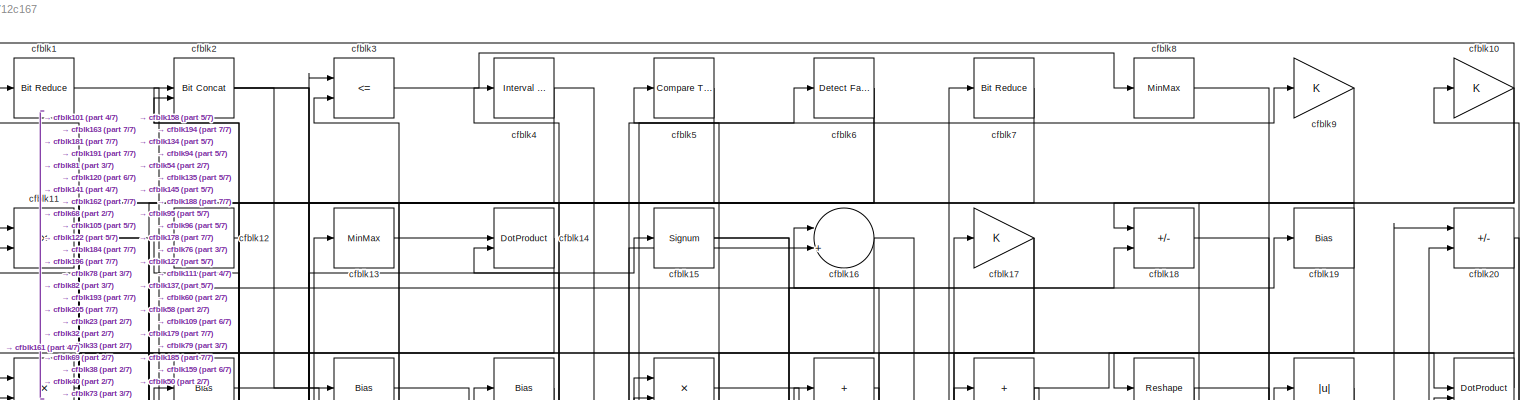
[diagram: root canvas - part 1/7, full width, top band]
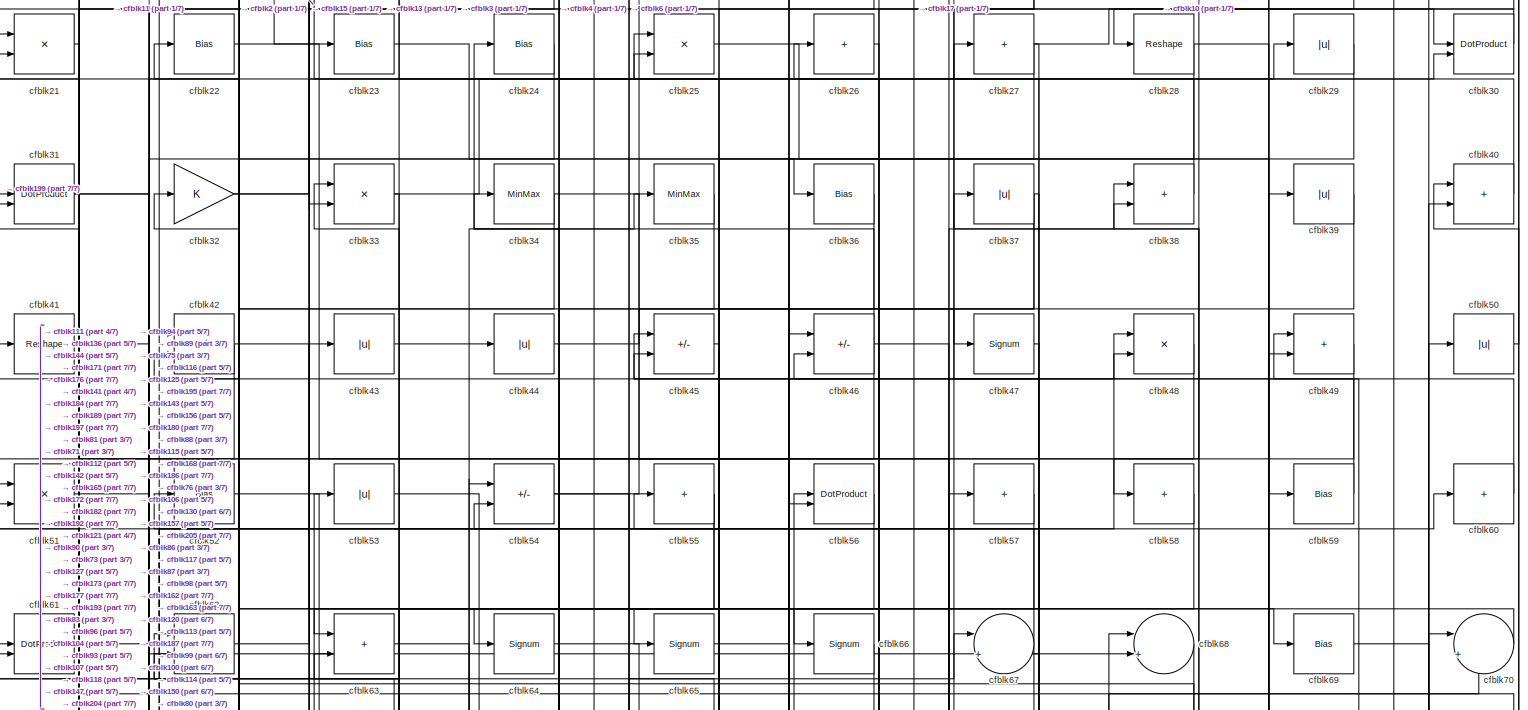
[diagram: root canvas - part 2/7, full width, top band]
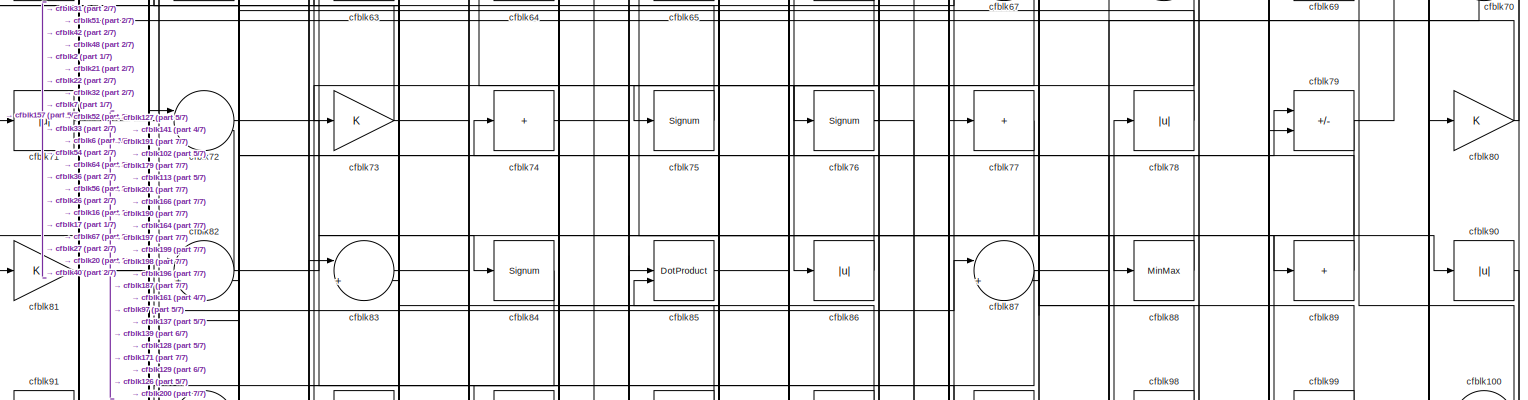
[diagram: root canvas - part 3/7, full width, middle band]
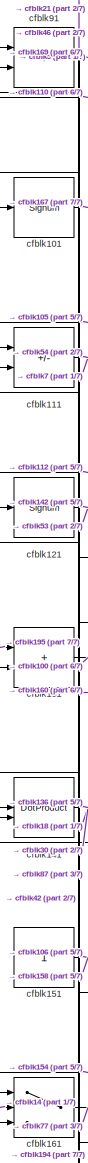
[diagram: root canvas - part 4/7, middle left region]
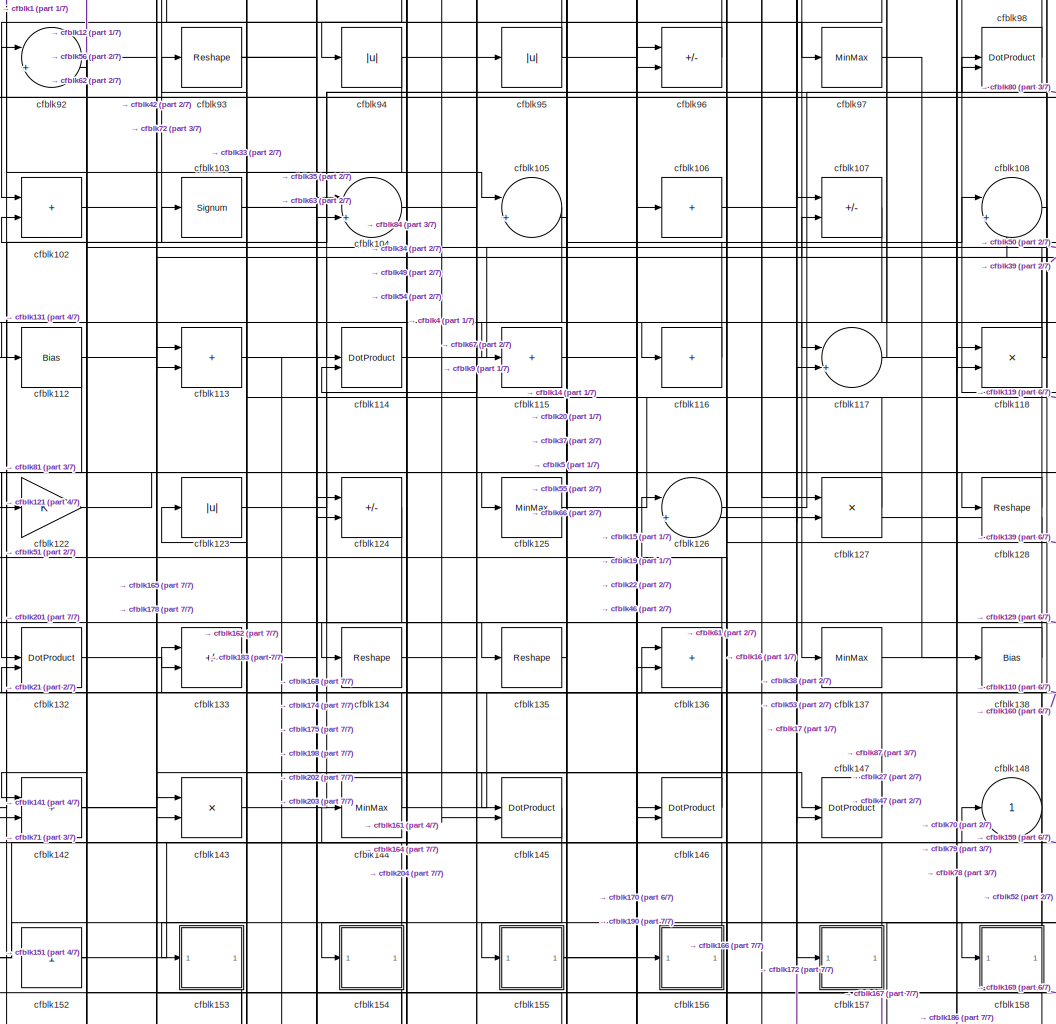
[diagram: root canvas - part 5/7, central region]
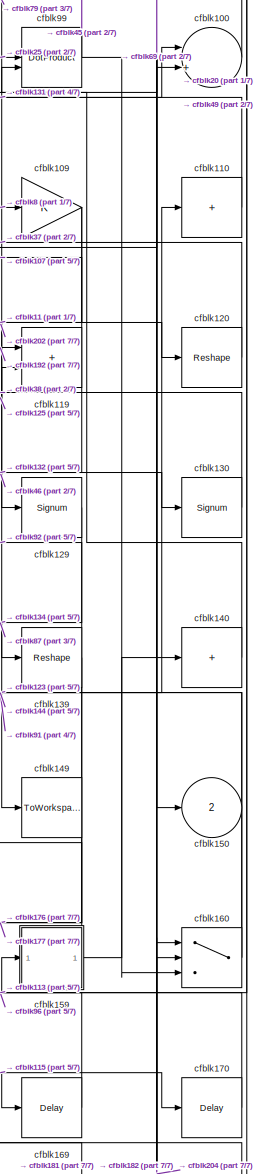
[diagram: root canvas - part 6/7, middle right region]
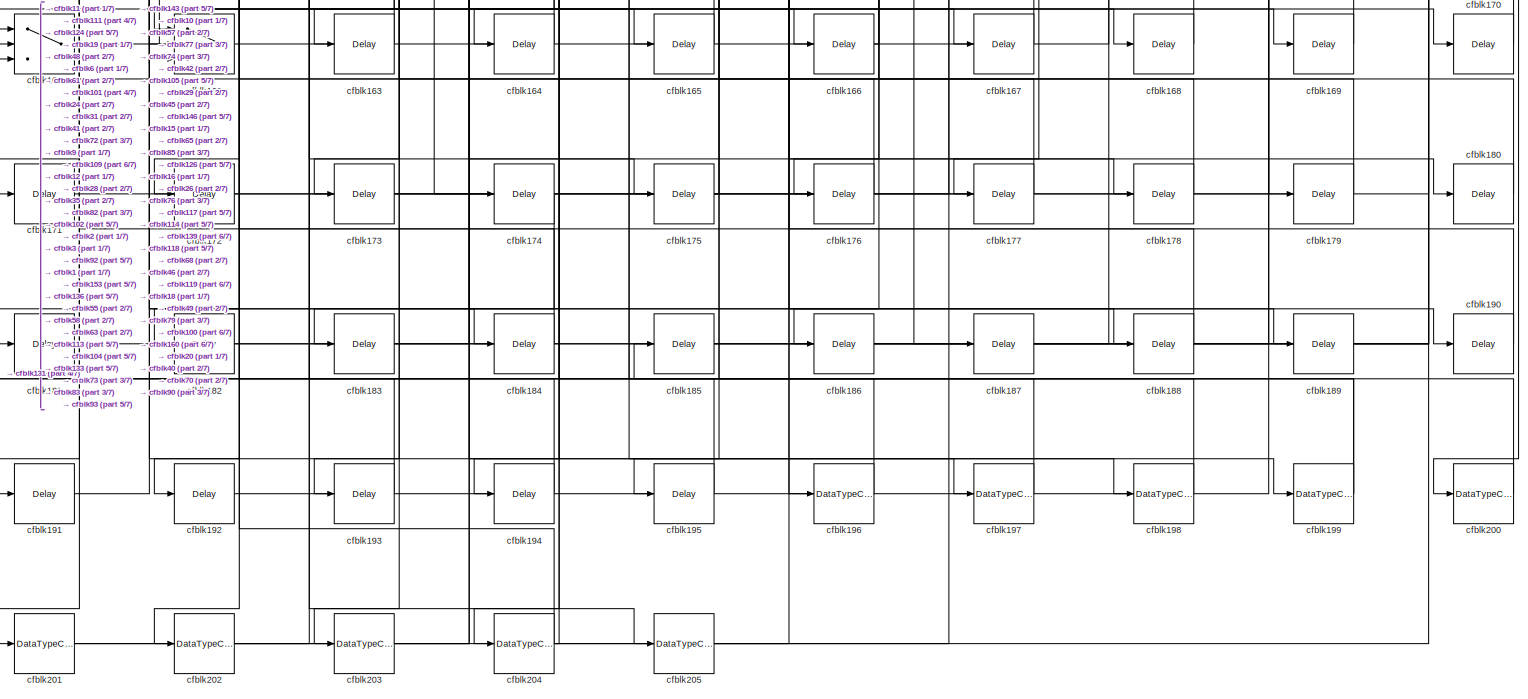
[diagram: root canvas - part 7/7, full width, bottom band]
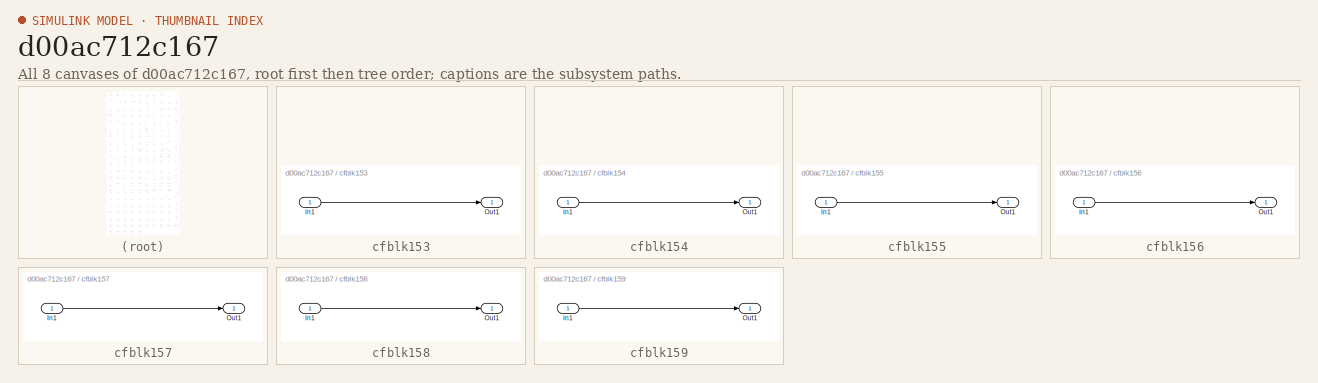
[diagram: thumbnail index - all 8 canvases of the model, root first then tree order]
MODEL slx_d00ac712c167
KIND model
CONFIG AbsTol = auto
CONFIG EnableMultiTasking = off
CONFIG FixedStep = auto
CONFIG MaxStep = auto
CONFIG MinStep = auto
CONFIG RelTol = 1e-3
CONFIG SampleTimeConstraint = Unconstrained
CONFIG SolverName = VariableStepAuto
CONFIG StartTime = 0.0
CONFIG StopTime = 10.0
BLOCK [Reference] cfblk1  REF=hdlsllib/Logic and Bit
Operations/Bit Reduce
  SourceBlock = hdlsllib/Logic and Bit\nOperations/Bit Reduce
  SourceType = Bit Reduce
BLOCK [Gain] cfblk10
BLOCK [Sum] cfblk100
  Inputs = |++
BLOCK [Signum] cfblk101
BLOCK [Sum] cfblk102
  IconShape = rectangular
BLOCK [Signum] cfblk103
BLOCK [Sum] cfblk104
  Inputs = |++
BLOCK [Sum] cfblk105
  Inputs = |++
BLOCK [Sum] cfblk106
  IconShape = rectangular
  Inputs = +
BLOCK [Sum] cfblk107
  IconShape = rectangular
  Inputs = +-
BLOCK [Sum] cfblk108
  Inputs = |++
BLOCK [Gain] cfblk109
BLOCK [Product] cfblk11
  Inputs = */
  RndMeth = Zero
  SaturateOnIntegerOverflow = on
BLOCK [Sum] cfblk110
  IconShape = rectangular
  Inputs = +
BLOCK [Sum] cfblk111
  IconShape = rectangular
  Inputs = +-
BLOCK [Bias] cfblk112
  Bias = 0.0
  SaturateOnIntegerOverflow = off
BLOCK [Sum] cfblk113
  IconShape = rectangular
BLOCK [DotProduct] cfblk114
  OutDataTypeStr = Inherit: Inherit via internal rule
BLOCK [Sum] cfblk115
  IconShape = rectangular
  Inputs = +
BLOCK [Sum] cfblk116
  IconShape = rectangular
  Inputs = +
BLOCK [Sum] cfblk117
  Inputs = |++
BLOCK [Product] cfblk118
  Inputs = */
  RndMeth = Zero
  SaturateOnIntegerOverflow = on
BLOCK [Sum] cfblk119
  IconShape = rectangular
BLOCK [Sum] cfblk12
  IconShape = rectangular
  Inputs = +
BLOCK [Reshape] cfblk120
BLOCK [Signum] cfblk121
BLOCK [Gain] cfblk122
BLOCK [Abs] cfblk123
  SaturateOnIntegerOverflow = off
BLOCK [Sum] cfblk124
  IconShape = rectangular
  Inputs = +-
BLOCK [MinMax] cfblk125
BLOCK [Sum] cfblk126
  Inputs = |++
BLOCK [Product] cfblk127
  Inputs = */
  RndMeth = Zero
  SaturateOnIntegerOverflow = on
BLOCK [Reshape] cfblk128
BLOCK [Signum] cfblk129
BLOCK [MinMax] cfblk13
BLOCK [Signum] cfblk130
BLOCK [Sum] cfblk131
  IconShape = rectangular
BLOCK [DotProduct] cfblk132
  OutDataTypeStr = Inherit: Inherit via internal rule
BLOCK [Sum] cfblk133
  IconShape = rectangular
  Inputs = +-
BLOCK [Reshape] cfblk134
BLOCK [Reshape] cfblk135
BLOCK [Sum] cfblk136
  IconShape = rectangular
BLOCK [MinMax] cfblk137
BLOCK [Bias] cfblk138
  Bias = 0.0
  SaturateOnIntegerOverflow = off
BLOCK [Reshape] cfblk139
BLOCK [DotProduct] cfblk14
  OutDataTypeStr = Inherit: Inherit via internal rule
BLOCK [Sum] cfblk140
  IconShape = rectangular
  Inputs = +
BLOCK [DotProduct] cfblk141
  OutDataTypeStr = Inherit: Inherit via internal rule
BLOCK [Sum] cfblk142
  IconShape = rectangular
BLOCK [Product] cfblk143
  Inputs = */
  RndMeth = Zero
  SaturateOnIntegerOverflow = on
BLOCK [MinMax] cfblk144
BLOCK [DotProduct] cfblk145
  OutDataTypeStr = Inherit: Inherit via internal rule
BLOCK [DotProduct] cfblk146
  OutDataTypeStr = Inherit: Inherit via internal rule
BLOCK [DotProduct] cfblk147
  OutDataTypeStr = Inherit: Inherit via internal rule
BLOCK [Outport] cfblk148
  VectorParamsAs1DForOutWhenUnconnected = off
BLOCK [ToWorkspace] cfblk149
  MaxDataPoints = inf
  SampleTime = -1
  SaveFormat = Timeseries
  VariableName = simout
BLOCK [Signum] cfblk15
BLOCK [Outport] cfblk150
  Port = 2
  VectorParamsAs1DForOutWhenUnconnected = off
BLOCK [Constant] cfblk151
  SampleTime = -1
BLOCK [Constant] cfblk152
  SampleTime = -1
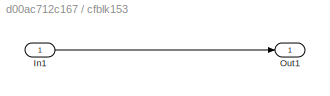
BLOCK [SubSystem] cfblk153
  LibrarySourceBlock = hdlsllib/Ports &\nSubsystems/Subsystem
BLOCK [Inport] cfblk153/In1
BLOCK [Outport] cfblk153/Out1
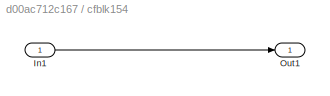
BLOCK [SubSystem] cfblk154
  LibrarySourceBlock = hdlsllib/Ports &\nSubsystems/Subsystem
BLOCK [Inport] cfblk154/In1
BLOCK [Outport] cfblk154/Out1
BLOCK [SubSystem] cfblk155
  LibrarySourceBlock = hdlsllib/Ports &\nSubsystems/Subsystem
BLOCK [Inport] cfblk155/In1
BLOCK [Outport] cfblk155/Out1
BLOCK [SubSystem] cfblk156
  LibrarySourceBlock = hdlsllib/Ports &\nSubsystems/Subsystem
BLOCK [Inport] cfblk156/In1
BLOCK [Outport] cfblk156/Out1
BLOCK [SubSystem] cfblk157
  LibrarySourceBlock = hdlsllib/Ports &\nSubsystems/Subsystem
BLOCK [Inport] cfblk157/In1
BLOCK [Outport] cfblk157/Out1
BLOCK [SubSystem] cfblk158
  LibrarySourceBlock = hdlsllib/Ports &\nSubsystems/Subsystem
BLOCK [Inport] cfblk158/In1
BLOCK [Outport] cfblk158/Out1
BLOCK [SubSystem] cfblk159
  LibrarySourceBlock = hdlsllib/Ports &\nSubsystems/Subsystem
BLOCK [Inport] cfblk159/In1
BLOCK [Outport] cfblk159/Out1
BLOCK [Sum] cfblk16
  Inputs = |++
BLOCK [Switch] cfblk160
  InputSameDT = off
  SaturateOnIntegerOverflow = off
BLOCK [Switch] cfblk161
  InputSameDT = off
  SaturateOnIntegerOverflow = off
BLOCK [Switch] cfblk162
  InputSameDT = off
  SaturateOnIntegerOverflow = off
BLOCK [Delay] cfblk163
  InputPortMap = u0
  SampleTime = 1
BLOCK [Delay] cfblk164
  InputPortMap = u0
  SampleTime = 1
BLOCK [Delay] cfblk165
  InputPortMap = u0
  SampleTime = 1
BLOCK [Delay] cfblk166
  InputPortMap = u0
  SampleTime = 1
BLOCK [Delay] cfblk167
  InputPortMap = u0
  SampleTime = 1
BLOCK [Delay] cfblk168
  InputPortMap = u0
  SampleTime = 1
BLOCK [Delay] cfblk169
  InputPortMap = u0
  SampleTime = 1
BLOCK [Gain] cfblk17
BLOCK [Delay] cfblk170
  InputPortMap = u0
  SampleTime = 1
BLOCK [Delay] cfblk171
  InputPortMap = u0
  SampleTime = 1
BLOCK [Delay] cfblk172
  InputPortMap = u0
  SampleTime = 1
BLOCK [Delay] cfblk173
  InputPortMap = u0
  SampleTime = 1
BLOCK [Delay] cfblk174
  InputPortMap = u0
  SampleTime = 1
BLOCK [Delay] cfblk175
  InputPortMap = u0
  SampleTime = 1
BLOCK [Delay] cfblk176
  InputPortMap = u0
  SampleTime = 1
BLOCK [Delay] cfblk177
  InputPortMap = u0
  SampleTime = 1
BLOCK [Delay] cfblk178
  InputPortMap = u0
  SampleTime = 1
BLOCK [Delay] cfblk179
  InputPortMap = u0
  SampleTime = 1
BLOCK [Sum] cfblk18
  IconShape = rectangular
  Inputs = +-
BLOCK [Delay] cfblk180
  InputPortMap = u0
  SampleTime = 1
BLOCK [Delay] cfblk181
  InputPortMap = u0
  SampleTime = 1
BLOCK [Delay] cfblk182
  InputPortMap = u0
  SampleTime = 1
BLOCK [Delay] cfblk183
  InputPortMap = u0
  SampleTime = 1
BLOCK [Delay] cfblk184
  InputPortMap = u0
  SampleTime = 1
BLOCK [Delay] cfblk185
  InputPortMap = u0
  SampleTime = 1
BLOCK [Delay] cfblk186
  InputPortMap = u0
  SampleTime = 1
BLOCK [Delay] cfblk187
  InputPortMap = u0
  SampleTime = 1
BLOCK [Delay] cfblk188
  InputPortMap = u0
  SampleTime = 1
BLOCK [Delay] cfblk189
  InputPortMap = u0
  SampleTime = 1
BLOCK [Bias] cfblk19
  Bias = 0.0
  SaturateOnIntegerOverflow = off
BLOCK [Delay] cfblk190
  InputPortMap = u0
  SampleTime = 1
BLOCK [Delay] cfblk191
  InputPortMap = u0
  SampleTime = 1
BLOCK [Delay] cfblk192
  InputPortMap = u0
  SampleTime = 1
BLOCK [Delay] cfblk193
  InputPortMap = u0
  SampleTime = 1
BLOCK [Delay] cfblk194
  InputPortMap = u0
  SampleTime = 1
BLOCK [Delay] cfblk195
  InputPortMap = u0
  SampleTime = 1
BLOCK [DataTypeConversion] cfblk196
  OutDataTypeStr = uint8
  RndMeth = Floor
  SaturateOnIntegerOverflow = off
BLOCK [DataTypeConversion] cfblk197
  OutDataTypeStr = uint8
  RndMeth = Floor
  SaturateOnIntegerOverflow = off
BLOCK [DataTypeConversion] cfblk198
  OutDataTypeStr = uint8
  RndMeth = Floor
  SaturateOnIntegerOverflow = off
BLOCK [DataTypeConversion] cfblk199
  RndMeth = Floor
  SaturateOnIntegerOverflow = off
BLOCK [Reference] cfblk2  REF=hdlsllib/Logic and Bit
Operations/Bit Concat
  SourceBlock = hdlsllib/Logic and Bit\nOperations/Bit Concat
  SourceType = Bit Concat
BLOCK [Sum] cfblk20
  IconShape = rectangular
  Inputs = +-
BLOCK [DataTypeConversion] cfblk200
  OutDataTypeStr = uint8
  RndMeth = Floor
  SaturateOnIntegerOverflow = off
BLOCK [DataTypeConversion] cfblk201
  RndMeth = Floor
  SaturateOnIntegerOverflow = off
BLOCK [DataTypeConversion] cfblk202
  OutDataTypeStr = uint8
  RndMeth = Floor
  SaturateOnIntegerOverflow = off
BLOCK [DataTypeConversion] cfblk203
  OutDataTypeStr = uint8
  RndMeth = Floor
  SaturateOnIntegerOverflow = off
BLOCK [DataTypeConversion] cfblk204
  RndMeth = Floor
  SaturateOnIntegerOverflow = off
BLOCK [DataTypeConversion] cfblk205
  OutDataTypeStr = uint8
  RndMeth = Floor
  SaturateOnIntegerOverflow = off
BLOCK [Product] cfblk21
  Inputs = */
  RndMeth = Zero
  SaturateOnIntegerOverflow = on
BLOCK [Bias] cfblk22
  Bias = 0.0
  SaturateOnIntegerOverflow = off
BLOCK [Bias] cfblk23
  Bias = 0.0
  SaturateOnIntegerOverflow = off
BLOCK [Bias] cfblk24
  Bias = 0.0
  SaturateOnIntegerOverflow = off
BLOCK [Product] cfblk25
  Inputs = */
  RndMeth = Zero
  SaturateOnIntegerOverflow = on
BLOCK [Sum] cfblk26
  IconShape = rectangular
  Inputs = +
BLOCK [Sum] cfblk27
  IconShape = rectangular
  Inputs = +
BLOCK [Reshape] cfblk28
BLOCK [Abs] cfblk29
  SaturateOnIntegerOverflow = off
BLOCK [RelationalOperator] cfblk3
  InputSameDT = off
  Operator = <=
  OutDataTypeStr = boolean
BLOCK [DotProduct] cfblk30
  OutDataTypeStr = Inherit: Inherit via internal rule
BLOCK [DotProduct] cfblk31
  OutDataTypeStr = Inherit: Inherit via internal rule
BLOCK [Gain] cfblk32
BLOCK [Product] cfblk33
  Inputs = */
  RndMeth = Zero
  SaturateOnIntegerOverflow = on
BLOCK [MinMax] cfblk34
BLOCK [MinMax] cfblk35
BLOCK [Bias] cfblk36
  Bias = 0.0
  SaturateOnIntegerOverflow = off
BLOCK [Abs] cfblk37
  SaturateOnIntegerOverflow = off
BLOCK [Sum] cfblk38
  IconShape = rectangular
BLOCK [Abs] cfblk39
  SaturateOnIntegerOverflow = off
BLOCK [Reference] cfblk4  REF=hdlsllib/Logic and Bit
Operations/Interval Test
  SourceBlock = hdlsllib/Logic and Bit\nOperations/Interval Test
  SourceType = Interval Test
BLOCK [Sum] cfblk40
  IconShape = rectangular
BLOCK [Reshape] cfblk41
BLOCK [Sum] cfblk42
  IconShape = rectangular
  Inputs = +-
BLOCK [Abs] cfblk43
  SaturateOnIntegerOverflow = off
BLOCK [Abs] cfblk44
  SaturateOnIntegerOverflow = off
BLOCK [Sum] cfblk45
  IconShape = rectangular
  Inputs = +-
BLOCK [Sum] cfblk46
  IconShape = rectangular
  Inputs = +-
BLOCK [Signum] cfblk47
BLOCK [Product] cfblk48
  Inputs = */
  RndMeth = Zero
  SaturateOnIntegerOverflow = on
BLOCK [Sum] cfblk49
  IconShape = rectangular
BLOCK [Reference] cfblk5  REF=hdlsllib/Logic and Bit
Operations/Compare
To Constant
  SourceBlock = hdlsllib/Logic and Bit\nOperations/Compare\nTo Constant
  SourceType = Compare To Constant
BLOCK [Abs] cfblk50
  SaturateOnIntegerOverflow = off
BLOCK [Product] cfblk51
  Inputs = */
  RndMeth = Zero
  SaturateOnIntegerOverflow = on
BLOCK [Bias] cfblk52
  Bias = 0.0
  SaturateOnIntegerOverflow = off
BLOCK [Abs] cfblk53
  SaturateOnIntegerOverflow = off
BLOCK [Sum] cfblk54
  IconShape = rectangular
  Inputs = +-
BLOCK [Sum] cfblk55
  IconShape = rectangular
  Inputs = +
BLOCK [DotProduct] cfblk56
  OutDataTypeStr = Inherit: Inherit via internal rule
BLOCK [Sum] cfblk57
  IconShape = rectangular
  Inputs = +
BLOCK [Sum] cfblk58
  IconShape = rectangular
  Inputs = +
BLOCK [Bias] cfblk59
  Bias = 0.0
  SaturateOnIntegerOverflow = off
BLOCK [Reference] cfblk6  REF=hdlsllib/Logic and Bit
Operations/Detect Fall
Nonpositive
  SourceBlock = hdlsllib/Logic and Bit\nOperations/Detect Fall\nNonpositive
  SourceType = Detect Fall Nonpositive
BLOCK [Sum] cfblk60
  IconShape = rectangular
  Inputs = +
BLOCK [DotProduct] cfblk61
  OutDataTypeStr = Inherit: Inherit via internal rule
BLOCK [Sum] cfblk62
  IconShape = rectangular
BLOCK [Sum] cfblk63
  IconShape = rectangular
BLOCK [Signum] cfblk64
BLOCK [Signum] cfblk65
BLOCK [Signum] cfblk66
BLOCK [Sum] cfblk67
  Inputs = |++
BLOCK [Sum] cfblk68
  Inputs = |++
BLOCK [Bias] cfblk69
  Bias = 0.0
  SaturateOnIntegerOverflow = off
BLOCK [Reference] cfblk7  REF=hdlsllib/Logic and Bit
Operations/Bit Reduce
  SourceBlock = hdlsllib/Logic and Bit\nOperations/Bit Reduce
  SourceType = Bit Reduce
BLOCK [Sum] cfblk70
  Inputs = |++
BLOCK [Abs] cfblk71
  SaturateOnIntegerOverflow = off
BLOCK [Sum] cfblk72
  Inputs = |++
BLOCK [Gain] cfblk73
BLOCK [Sum] cfblk74
  IconShape = rectangular
  Inputs = +
BLOCK [Signum] cfblk75
BLOCK [Signum] cfblk76
BLOCK [Sum] cfblk77
  IconShape = rectangular
  Inputs = +
BLOCK [Abs] cfblk78
  SaturateOnIntegerOverflow = off
BLOCK [Sum] cfblk79
  IconShape = rectangular
  Inputs = +-
BLOCK [MinMax] cfblk8
BLOCK [Gain] cfblk80
BLOCK [Gain] cfblk81
BLOCK [Sum] cfblk82
  Inputs = |++
BLOCK [Sum] cfblk83
  Inputs = |++
BLOCK [Signum] cfblk84
BLOCK [DotProduct] cfblk85
  OutDataTypeStr = Inherit: Inherit via internal rule
BLOCK [Abs] cfblk86
  SaturateOnIntegerOverflow = off
BLOCK [Sum] cfblk87
  Inputs = |++
BLOCK [MinMax] cfblk88
BLOCK [Sum] cfblk89
  IconShape = rectangular
  Inputs = +
BLOCK [Gain] cfblk9
BLOCK [Abs] cfblk90
  SaturateOnIntegerOverflow = off
BLOCK [Sum] cfblk91
  IconShape = rectangular
  Inputs = +-
BLOCK [Sum] cfblk92
  Inputs = |++
BLOCK [Reshape] cfblk93
BLOCK [Abs] cfblk94
  SaturateOnIntegerOverflow = off
BLOCK [Abs] cfblk95
  SaturateOnIntegerOverflow = off
BLOCK [Sum] cfblk96
  IconShape = rectangular
  Inputs = +-
BLOCK [MinMax] cfblk97
BLOCK [DotProduct] cfblk98
  OutDataTypeStr = Inherit: Inherit via internal rule
BLOCK [DotProduct] cfblk99
  OutDataTypeStr = Inherit: Inherit via internal rule
LINE cfblk100:1 -> cfblk49:1
LINE cfblk101:1 -> cfblk167:1
LINE cfblk102:1 -> cfblk165:1
NET cfblk103:1 -> cfblk128:1, cfblk136:2
LINE cfblk104:1 -> cfblk67:1
LINE cfblk105:1 -> cfblk131:2
LINE cfblk106:1 -> cfblk38:1
LINE cfblk107:1 -> cfblk154:1
LINE cfblk108:1 -> cfblk133:1
NET cfblk109:1 -> cfblk149:1, cfblk202:1
NET cfblk10:1 -> cfblk11:1, cfblk194:1, cfblk58:1
LINE cfblk110:1 -> cfblk91:1
NET cfblk111:1 -> cfblk54:1, cfblk7:1
NET cfblk112:1 -> cfblk116:1, cfblk161:3
NET cfblk113:1 -> cfblk147:2, cfblk174:1, cfblk175:1, cfblk39:1
LINE cfblk114:1 -> cfblk50:1
LINE cfblk115:1 -> cfblk170:1
LINE cfblk116:1 -> cfblk55:1
NET cfblk117:1 -> cfblk27:1, cfblk70:2
NET cfblk118:1 -> cfblk54:2, cfblk62:2, cfblk98:2
NET cfblk119:1 -> cfblk107:2, cfblk132:1
NET cfblk11:1 -> cfblk120:1, cfblk68:2
LINE cfblk120:1 -> cfblk37:1
NET cfblk121:1 -> cfblk142:2, cfblk53:1
LINE cfblk122:1 -> cfblk135:1
LINE cfblk123:1 -> cfblk95:1
LINE cfblk124:1 -> cfblk201:1
LINE cfblk125:1 -> cfblk119:2
LINE cfblk126:1 -> cfblk80:1
LINE cfblk127:1 -> cfblk33:1
LINE cfblk128:1 -> cfblk78:1
LINE cfblk129:1 -> cfblk134:1
LINE cfblk12:1 -> cfblk122:1
LINE cfblk130:1 -> cfblk38:2
LINE cfblk131:1 -> cfblk100:1
LINE cfblk132:1 -> cfblk133:2
LINE cfblk133:1 -> cfblk198:1
LINE cfblk134:1 -> cfblk9:1
LINE cfblk135:1 -> cfblk5:1
NET cfblk136:1 -> cfblk183:1, cfblk51:2
LINE cfblk137:1 -> cfblk79:1
LINE cfblk138:1 -> cfblk126:2
NET cfblk139:1 -> cfblk176:1, cfblk177:1, cfblk92:1
LINE cfblk13:1 -> cfblk14:1
LINE cfblk140:1 -> cfblk99:2
NET cfblk141:1 -> cfblk136:1, cfblk18:2, cfblk30:2, cfblk87:1
NET cfblk142:1 -> cfblk108:2, cfblk147:1
LINE cfblk143:1 -> cfblk46:1
NET cfblk144:1 -> cfblk110:1, cfblk21:2
LINE cfblk145:1 -> cfblk155:1
NET cfblk146:1 -> cfblk103:1, cfblk92:2
LINE cfblk147:1 -> cfblk34:1
LINE cfblk14:1 -> cfblk161:2
NET cfblk151:1 -> cfblk106:1, cfblk158:1
NET cfblk152:1 -> cfblk132:2, cfblk148:1
LINE cfblk153/In1:1 -> cfblk153/Out1:1
LINE cfblk153:1 -> cfblk162:1
LINE cfblk154/In1:1 -> cfblk154/Out1:1
NET cfblk154:1 -> cfblk161:1, cfblk93:1
LINE cfblk155/In1:1 -> cfblk155/Out1:1
NET cfblk155:1 -> cfblk108:1, cfblk98:1
LINE cfblk156/In1:1 -> cfblk156/Out1:1
LINE cfblk156:1 -> cfblk62:1
LINE cfblk157/In1:1 -> cfblk157/Out1:1
LINE cfblk157:1 -> cfblk71:1
LINE cfblk158/In1:1 -> cfblk158/Out1:1
NET cfblk158:1 -> cfblk121:1, cfblk4:1
LINE cfblk159/In1:1 -> cfblk159/Out1:1
NET cfblk159:1 -> cfblk140:1, cfblk144:1
NET cfblk15:1 -> cfblk188:1, cfblk96:2
NET cfblk160:1 -> cfblk123:1, cfblk91:2
LINE cfblk161:1 -> cfblk77:1
LINE cfblk162:1 -> cfblk68:1
LINE cfblk163:1 -> cfblk1:1
LINE cfblk164:1 -> cfblk143:1
LINE cfblk165:1 -> cfblk42:2
LINE cfblk166:1 -> cfblk126:1
LINE cfblk167:1 -> cfblk114:1
LINE cfblk168:1 -> cfblk46:2
LINE cfblk169:1 -> cfblk96:1
NET cfblk16:1 -> cfblk127:1, cfblk81:1
LINE cfblk170:1 -> cfblk113:1
LINE cfblk171:1 -> cfblk79:2
LINE cfblk172:1 -> cfblk117:2
LINE cfblk173:1 -> cfblk40:2
LINE cfblk174:1 -> cfblk203:1
LINE cfblk175:1 -> cfblk105:2
LINE cfblk176:1 -> cfblk61:2
LINE cfblk177:1 -> cfblk63:2
LINE cfblk178:1 -> cfblk16:1
LINE cfblk179:1 -> cfblk82:1
NET cfblk17:1 -> cfblk137:1, cfblk76:1
LINE cfblk180:1 -> cfblk45:2
LINE cfblk181:1 -> cfblk160:2
LINE cfblk182:1 -> cfblk100:2
LINE cfblk183:1 -> cfblk104:2
LINE cfblk184:1 -> cfblk2:2
LINE cfblk185:1 -> cfblk20:2
LINE cfblk186:1 -> cfblk118:1
LINE cfblk187:1 -> cfblk49:2
LINE cfblk188:1 -> cfblk11:2
LINE cfblk189:1 -> cfblk70:1
LINE cfblk18:1 -> cfblk179:1
LINE cfblk190:1 -> cfblk146:1
LINE cfblk191:1 -> cfblk72:1
LINE cfblk192:1 -> cfblk119:1
LINE cfblk193:1 -> cfblk3:1
LINE cfblk194:1 -> cfblk111:2
LINE cfblk195:1 -> cfblk131:1
LINE cfblk196:1 -> cfblk12:1
LINE cfblk197:1 -> cfblk85:1
LINE cfblk198:1 -> cfblk85:2
NET cfblk199:1 -> cfblk185:1, cfblk31:1
NET cfblk19:1 -> cfblk181:1, cfblk18:1
LINE cfblk1:1 -> cfblk105:1
LINE cfblk200:1 -> cfblk74:1
NET cfblk201:1 -> cfblk146:2, cfblk83:1
LINE cfblk202:1 -> cfblk124:1
LINE cfblk203:1 -> cfblk124:2
NET cfblk204:1 -> cfblk102:2, cfblk114:2, cfblk160:1
LINE cfblk205:1 -> cfblk57:1
NET cfblk20:1 -> cfblk145:1, cfblk159:1
LINE cfblk21:1 -> cfblk141:1
LINE cfblk22:1 -> cfblk156:1
LINE cfblk23:1 -> cfblk36:1
LINE cfblk24:1 -> cfblk162:2
LINE cfblk25:1 -> cfblk99:1
LINE cfblk26:1 -> cfblk186:1
NET cfblk27:1 -> cfblk30:1, cfblk56:2, cfblk87:2
NET cfblk28:1 -> cfblk182:1, cfblk59:1
LINE cfblk29:1 -> cfblk195:1
NET cfblk2:1 -> cfblk205:1, cfblk23:1, cfblk69:1
LINE cfblk30:1 -> cfblk28:1
NET cfblk31:1 -> cfblk184:1, cfblk197:1
NET cfblk32:1 -> cfblk15:1, cfblk25:2
NET cfblk33:1 -> cfblk29:1, cfblk83:2
NET cfblk34:1 -> cfblk112:1, cfblk157:1
LINE cfblk35:1 -> cfblk192:1
LINE cfblk36:1 -> cfblk75:1
NET cfblk37:1 -> cfblk125:1, cfblk64:1, cfblk67:2
LINE cfblk38:1 -> cfblk13:1
LINE cfblk39:1 -> cfblk66:1
LINE cfblk3:1 -> cfblk8:1
LINE cfblk40:1 -> cfblk3:2
LINE cfblk41:1 -> cfblk189:1
NET cfblk42:1 -> cfblk141:2, cfblk143:2
LINE cfblk43:1 -> cfblk44:1
LINE cfblk44:1 -> cfblk47:1
LINE cfblk45:1 -> cfblk65:1
NET cfblk46:1 -> cfblk111:1, cfblk130:1, cfblk24:1
LINE cfblk47:1 -> cfblk117:1
LINE cfblk48:1 -> cfblk171:1
LINE cfblk49:1 -> cfblk94:1
NET cfblk4:1 -> cfblk145:2, cfblk33:2
LINE cfblk50:1 -> cfblk10:1
LINE cfblk51:1 -> cfblk48:1
LINE cfblk52:1 -> cfblk90:1
LINE cfblk53:1 -> cfblk107:1
NET cfblk54:1 -> cfblk6:1, cfblk89:1
NET cfblk55:1 -> cfblk172:1, cfblk173:1
LINE cfblk56:1 -> cfblk142:1
LINE cfblk57:1 -> cfblk204:1
LINE cfblk58:1 -> cfblk193:1
LINE cfblk59:1 -> cfblk25:1
LINE cfblk5:1 -> cfblk101:1
LINE cfblk60:1 -> cfblk17:1
LINE cfblk61:1 -> cfblk60:1
LINE cfblk62:1 -> cfblk43:1
LINE cfblk63:1 -> cfblk104:1
LINE cfblk64:1 -> cfblk88:1
LINE cfblk65:1 -> cfblk180:1
LINE cfblk66:1 -> cfblk115:1
NET cfblk67:1 -> cfblk41:1, cfblk86:1
LINE cfblk68:1 -> cfblk163:1
LINE cfblk69:1 -> cfblk150:1
NET cfblk6:1 -> cfblk191:1, cfblk73:1
LINE cfblk70:1 -> cfblk63:1
LINE cfblk71:1 -> cfblk48:2
LINE cfblk72:1 -> cfblk97:1
NET cfblk73:1 -> cfblk190:1, cfblk31:2
LINE cfblk74:1 -> cfblk199:1
LINE cfblk75:1 -> cfblk22:1
NET cfblk76:1 -> cfblk187:1, cfblk26:1
LINE cfblk77:1 -> cfblk164:1
LINE cfblk78:1 -> cfblk2:1
NET cfblk79:1 -> cfblk129:1, cfblk20:1
LINE cfblk7:1 -> cfblk82:2
NET cfblk80:1 -> cfblk40:1, cfblk51:1
NET cfblk81:1 -> cfblk127:2, cfblk42:1
NET cfblk82:1 -> cfblk72:2, cfblk84:1
LINE cfblk83:1 -> cfblk166:1
LINE cfblk84:1 -> cfblk102:1
LINE cfblk85:1 -> cfblk196:1
LINE cfblk86:1 -> cfblk32:1
NET cfblk87:1 -> cfblk113:2, cfblk139:1
LINE cfblk88:1 -> cfblk56:1
LINE cfblk89:1 -> cfblk21:1
LINE cfblk8:1 -> cfblk109:1
LINE cfblk90:1 -> cfblk200:1
LINE cfblk91:1 -> cfblk169:1
LINE cfblk92:1 -> cfblk178:1
NET cfblk93:1 -> cfblk118:2, cfblk168:1, cfblk35:1
NET cfblk94:1 -> cfblk153:1, cfblk16:2
NET cfblk95:1 -> cfblk14:2, cfblk19:1
LINE cfblk96:1 -> cfblk61:1
LINE cfblk97:1 -> cfblk138:1
LINE cfblk98:1 -> cfblk52:1
NET cfblk99:1 -> cfblk160:3, cfblk45:1
LINE cfblk9:1 -> cfblk162:3
note: NET lines group one-source signal fan-out (src -> all destinations, sorted); 1:1 wires keep LINE
